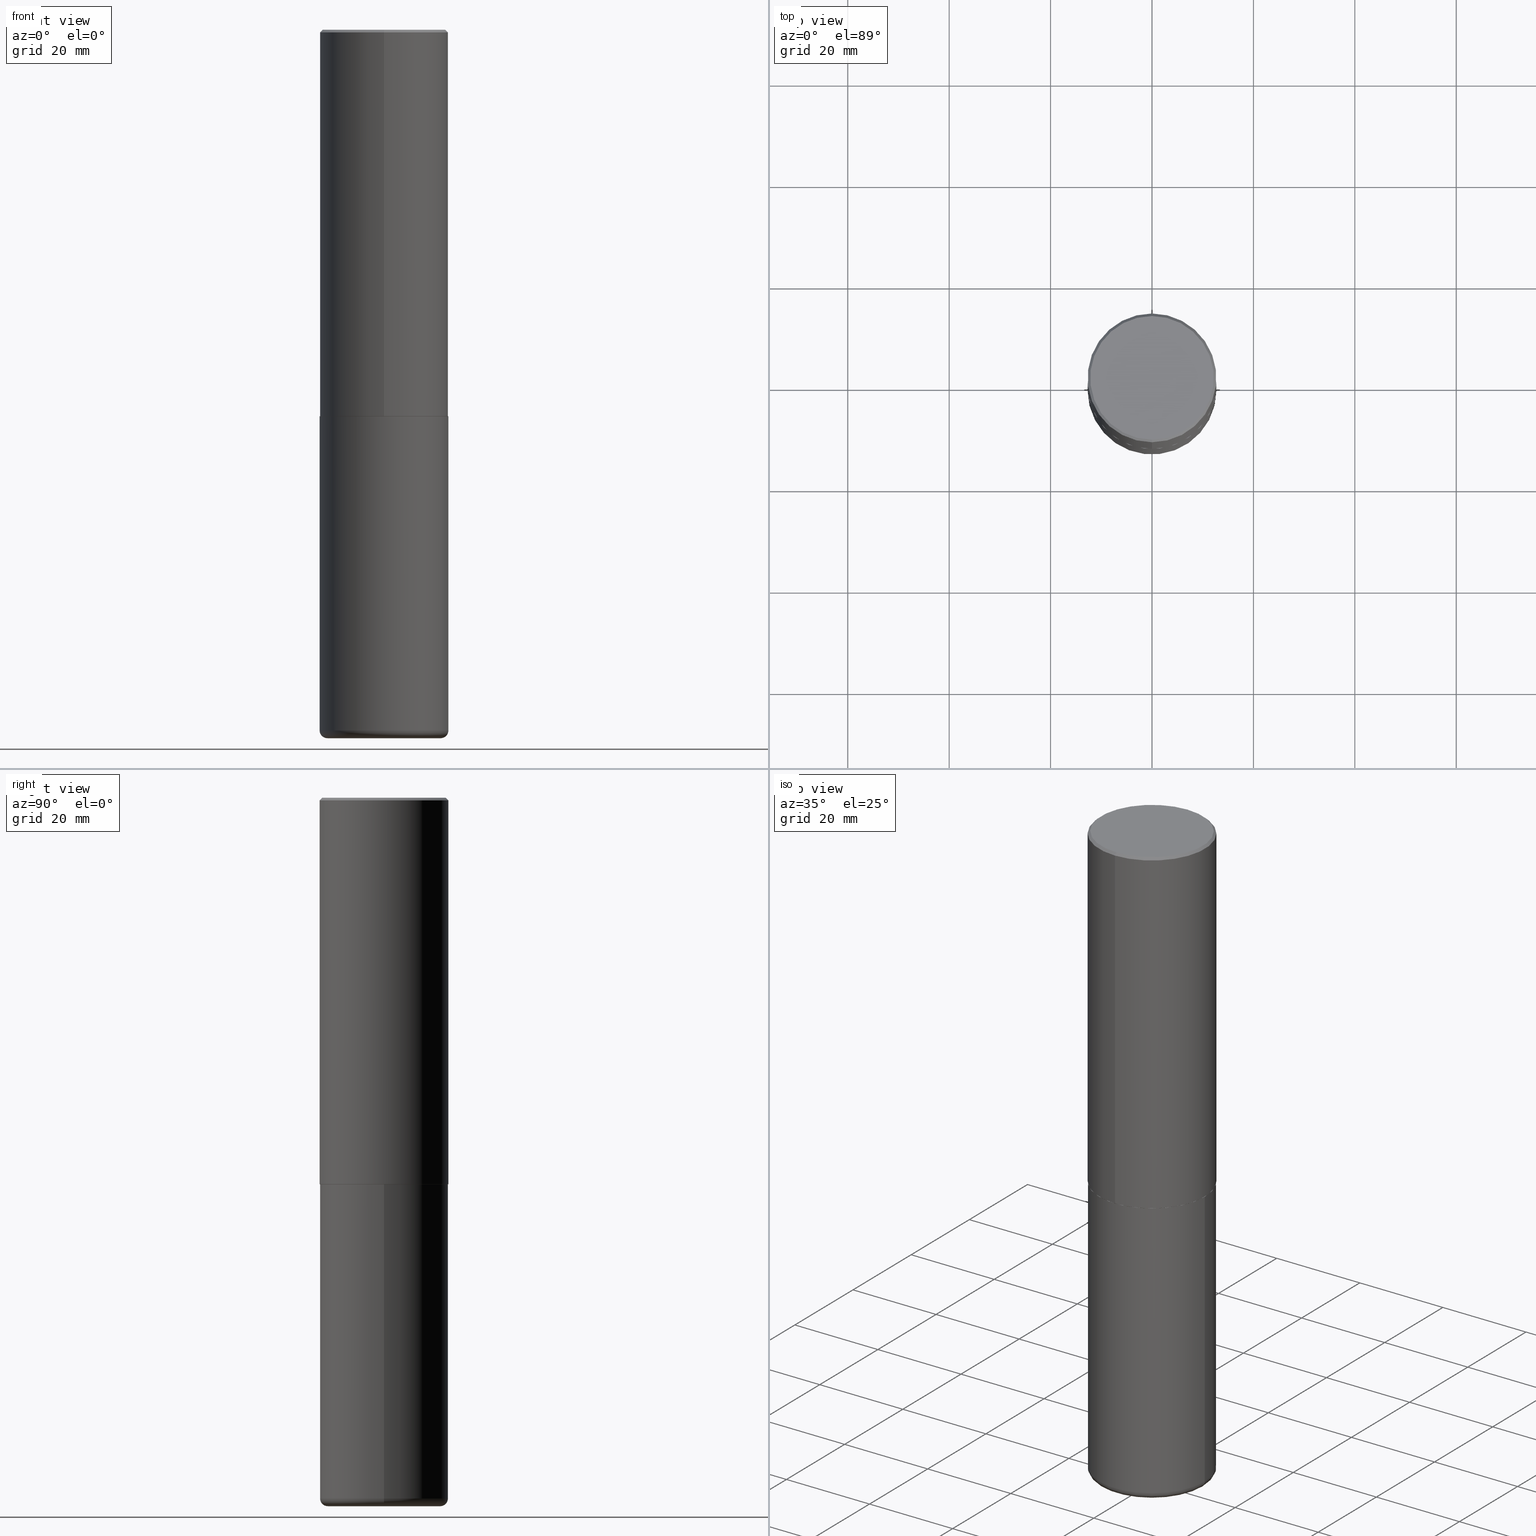
[diagram: canonical four-view strip — front | top / right | iso, engineering-drawing reading convention]
A machine part, canonical four-view strip (front | top / right | iso — engineering-drawing reading convention). The complete STEP part file that produces these views, byte-faithful:
ISO-10303-21;
HEADER;
FILE_DESCRIPTION (( 'STEP AP203' ),
    '1' );
FILE_NAME ('77470.STEP',
    '2024-05-02T19:46:16',
    ( '' ),
    ( '' ),
    'SwSTEP 2.0',
    'SolidWorks 2023',
    '' );
FILE_SCHEMA (( 'CONFIG_CONTROL_DESIGN' ));
ENDSEC;

DATA;
#1 = PERSON_AND_ORGANIZATION_ROLE ( 'design_supplier' ) ;
#2 = ORIENTED_EDGE ( 'NONE', *, *, #126, .T. ) ;
#3 = AXIS2_PLACEMENT_3D ( 'NONE', #138, #376, #83 ) ;
#4 = PERSON_AND_ORGANIZATION ( #367, #364 ) ;
#5 = FACE_OUTER_BOUND ( 'NONE', #248, .T. ) ;
#6 = PERSON_AND_ORGANIZATION_ROLE ( 'classification_officer' ) ;
#7 = DIRECTION ( 'NONE',  ( 2.446018302604025097E-29, -3.490694428695902798E-15, -1.000000000000000000 ) ) ;
#8 = APPROVAL_DATE_TIME ( #160, #267 ) ;
#9 = AXIS2_PLACEMENT_3D ( 'NONE', #246, #383, #89 ) ;
#10 = CARTESIAN_POINT ( 'NONE',  ( 0.5000000000000000000, -3.491481338843133355E-15, 2.438088387897967896E-29 ) ) ;
#11 = ADVANCED_FACE ( 'NONE', ( #5 ), #301, .T. ) ;
#12 = EDGE_CURVE ( 'NONE', #361, #276, #292, .T. ) ;
#13 = PLANE ( 'NONE',  #370 ) ;
#14 = ORIENTED_EDGE ( 'NONE', *, *, #61, .F. ) ;
#15 = APPROVAL ( #132, 'UNSPECIFIED' ) ;
#16 = DIRECTION ( 'NONE',  ( -2.446018302604025378E-29, 3.490694428695902798E-15, 1.000000000000000000 ) ) ;
#17 = FACE_OUTER_BOUND ( 'NONE', #209, .T. ) ;
#18 = CARTESIAN_POINT ( 'NONE',  ( 7.338054907812074731E-29, -1.047208328608770642E-14, -2.999999999999999556 ) ) ;
#19 = AXIS2_PLACEMENT_3D ( 'NONE', #219, #244, #319 ) ;
#20 = CIRCLE ( 'NONE', #122, 0.5000000000000003331 ) ;
#21 = EDGE_LOOP ( 'NONE', ( #140, #363, #290, #163 ) ) ;
#22 = DIRECTION ( 'NONE',  ( -6.982962677686265922E-15, -1.000000000000000000, 3.490694428695902798E-15 ) ) ;
#23 = CC_DESIGN_PERSON_AND_ORGANIZATION_ASSIGNMENT ( #189, #225, ( #294 ) ) ;
#24 = ORIENTED_EDGE ( 'NONE', *, *, #417, .F. ) ;
#25 = CARTESIAN_POINT ( 'NONE',  ( 0.000000000000000000, 0.000000000000000000, 0.000000000000000000 ) ) ;
#26 = PRODUCT_DEFINITION_FORMATION_WITH_SPECIFIED_SOURCE ( 'ANY', '', #44, .NOT_KNOWN. ) ;
#27 = MECHANICAL_CONTEXT ( 'NONE', #37, 'mechanical' ) ;
#28 = CARTESIAN_POINT ( 'NONE',  ( 3.421651712066271240E-15, 0.4800000000000000933, -1.782623854897220357E-15 ) ) ;
#29 = FACE_OUTER_BOUND ( 'NONE', #238, .T. ) ;
#30 = CONICAL_SURFACE ( 'NONE', #263, 0.5000000000000000000, 0.7853981633974463916 ) ;
#31 = ORIENTED_EDGE ( 'NONE', *, *, #351, .F. ) ;
#32 = COORDINATED_UNIVERSAL_TIME_OFFSET ( 5, 0, .BEHIND. ) ;
#33 = CC_DESIGN_DATE_AND_TIME_ASSIGNMENT ( #40, #297, ( #371 ) ) ;
#34 = DIRECTION ( 'NONE',  ( -6.982962677686265922E-15, -1.000000000000000000, 3.284787166730577015E-15 ) ) ;
#35 = DIRECTION ( 'NONE',  ( 1.000000000000000000, -6.982962677686270655E-15, 0.000000000000000000 ) ) ;
#36 = VERTEX_POINT ( 'NONE', #174 ) ;
#37 = APPLICATION_CONTEXT ( 'configuration controlled 3d designs of mechanical parts and assemblies' ) ;
#38 = CIRCLE ( 'NONE', #93, 0.5000000000000001110 ) ;
#39 = AXIS2_PLACEMENT_3D ( 'NONE', #18, #266, #230 ) ;
#40 = DATE_AND_TIME ( #103, #108 ) ;
#41 = SECURITY_CLASSIFICATION_LEVEL ( 'unclassified' ) ;
#42 = CARTESIAN_POINT ( 'NONE',  ( 7.335608889509473609E-29, -1.046859259165901344E-14, -2.999000000000000554 ) ) ;
#43 = DIRECTION ( 'NONE',  ( -6.982962677686265922E-15, -1.000000000000000000, 3.490694428695902798E-15 ) ) ;
#44 = PRODUCT ( '77470', '77470', '', ( #27 ) ) ;
#45 = CARTESIAN_POINT ( 'NONE',  ( 3.491481338843133355E-15, 0.4999999999999999445, -0.02000000000000185310 ) ) ;
#46 = ADVANCED_FACE ( 'NONE', ( #17 ), #142, .F. ) ;
#47 = ORIENTED_EDGE ( 'NONE', *, *, #327, .F. ) ;
#48 = DIRECTION ( 'NONE',  ( 1.000000000000000000, -6.982962677686269077E-15, 0.000000000000000000 ) ) ;
#49 = DIRECTION ( 'NONE',  ( -2.445468806185136597E-29, 3.491481338843145583E-15, 1.000000000000000000 ) ) ;
#50 = DIRECTION ( 'NONE',  ( 1.000000000000000000, -6.982962677686262766E-15, 4.883557194083111780E-29 ) ) ;
#51 = ADVANCED_FACE ( 'NONE', ( #318 ), #152, .T. ) ;
#52 = FACE_OUTER_BOUND ( 'NONE', #112, .T. ) ;
#53 = AXIS2_PLACEMENT_3D ( 'NONE', #172, #49, #82 ) ;
#54 = LOCAL_TIME ( 15, 46, 16.00000000000000000, #127 ) ;
#55 = ORIENTED_EDGE ( 'NONE', *, *, #59, .T. ) ;
#56 = DIRECTION ( 'NONE',  ( -4.851104656540954020E-15, -0.7071067811865485719, -0.7071067811865464625 ) ) ;
#57 = EDGE_LOOP ( 'NONE', ( #354, #377 ) ) ;
#58 = CARTESIAN_POINT ( 'NONE',  ( 2.619453942708643347E-45, -3.738203133764044518E-31, -1.070905291231867826E-16 ) ) ;
#59 = EDGE_CURVE ( 'NONE', #418, #147, #341, .T. ) ;
#60 = FACE_OUTER_BOUND ( 'NONE', #110, .T. ) ;
#61 = EDGE_CURVE ( 'NONE', #88, #81, #104, .T. ) ;
#62 =( CONVERSION_BASED_UNIT ( 'INCH', #85 ) LENGTH_UNIT ( ) NAMED_UNIT ( #254 ) );
#63 = PERSON_AND_ORGANIZATION ( #367, #364 ) ;
#64 = AXIS2_PLACEMENT_3D ( 'NONE', #324, #395, #34 ) ;
#65 = VECTOR ( 'NONE', #92, 39.37007874015748143 ) ;
#66 = DATE_AND_TIME ( #157, #316 ) ;
#67 = FACE_OUTER_BOUND ( 'NONE', #313, .T. ) ;
#68 = ORIENTED_EDGE ( 'NONE', *, *, #325, .T. ) ;
#69 = ORIENTED_EDGE ( 'NONE', *, *, #187, .T. ) ;
#70 = CYLINDRICAL_SURFACE ( 'NONE', #136, 0.5000000000000000000 ) ;
#71 = ORIENTED_EDGE ( 'NONE', *, *, #126, .F. ) ;
#72 = AXIS2_PLACEMENT_3D ( 'NONE', #113, #339, #334 ) ;
#73 = APPROVAL_ROLE ( '' ) ;
#74 = DIRECTION ( 'NONE',  ( 2.446018302604025378E-29, -3.490694428695902798E-15, -1.000000000000000000 ) ) ;
#75 = ADVANCED_FACE ( 'NONE', ( #190 ), #30, .T. ) ;
#76 = DIRECTION ( 'NONE',  ( -1.000000000000000000, 7.105427357600994759E-15, 0.000000000000000000 ) ) ;
#77 = DIRECTION ( 'NONE',  ( 4.937700262164537787E-15, 0.7071067811865436870, -0.7071067811865513475 ) ) ;
#78 = AXIS2_PLACEMENT_3D ( 'NONE', #296, #7, #141 ) ;
#79 = APPROVAL_PERSON_ORGANIZATION ( #63, #365, #295 ) ;
#80 = FACE_OUTER_BOUND ( 'NONE', #241, .T. ) ;
#81 = VERTEX_POINT ( 'NONE', #392 ) ;
#82 = DIRECTION ( 'NONE',  ( 1.000000000000000000, -6.982962677686266711E-15, 0.000000000000000000 ) ) ;
#83 = DIRECTION ( 'NONE',  ( -6.982962677686265922E-15, -1.000000000000000000, 3.490694428695902798E-15 ) ) ;
#84 = ORIENTED_EDGE ( 'NONE', *, *, #357, .T. ) ;
#85 = LENGTH_MEASURE_WITH_UNIT ( LENGTH_MEASURE( 0.02539999999999999897 ), #412 );
#86 = AXIS2_PLACEMENT_3D ( 'NONE', #42, #228, #298 ) ;
#87 = CC_DESIGN_APPROVAL ( #15, ( #294 ) ) ;
#88 = VERTEX_POINT ( 'NONE', #358 ) ;
#89 = DIRECTION ( 'NONE',  ( 1.000000000000000000, 0.000000000000000000, 0.000000000000000000 ) ) ;
#90 = CARTESIAN_POINT ( 'NONE',  ( -3.430248998885764992E-15, -0.5000000000000001110, -0.01999999999999835937 ) ) ;
#91 = EDGE_CURVE ( 'NONE', #81, #177, #321, .T. ) ;
#92 = DIRECTION ( 'NONE',  ( -2.446018302604025097E-29, 3.490694428695902798E-15, 1.000000000000000000 ) ) ;
#93 = AXIS2_PLACEMENT_3D ( 'NONE', #173, #270, #48 ) ;
#94 = CARTESIAN_POINT ( 'NONE',  ( 1.345007843401825128E-28, -1.920314736363730603E-14, -5.500000000000000888 ) ) ;
#95 = ORIENTED_EDGE ( 'NONE', *, *, #216, .T. ) ;
#96 = DATE_TIME_ROLE ( 'creation_date' ) ;
#97 = DIRECTION ( 'NONE',  ( 6.982962677686265922E-15, 1.000000000000000000, -3.491643216902136408E-15 ) ) ;
#98 = ORIENTED_EDGE ( 'NONE', *, *, #259, .T. ) ;
#99 = PERSON_AND_ORGANIZATION_ROLE ( 'creator' ) ;
#100 = CARTESIAN_POINT ( 'NONE',  ( 7.336406418555408669E-29, -1.047444401652943478E-14, -2.999999999999999556 ) ) ;
#101 = EDGE_CURVE ( 'NONE', #276, #361, #256, .T. ) ;
#102 = ORIENTED_EDGE ( 'NONE', *, *, #417, .T. ) ;
#103 = CALENDAR_DATE ( 2024, 2, 5 ) ;
#104 = LINE ( 'NONE', #258, #210 ) ;
#105 = CARTESIAN_POINT ( 'NONE',  ( 4.892036605208077240E-31, -6.981388857391842821E-17, -0.02000000000000010797 ) ) ;
#106 = CARTESIAN_POINT ( 'NONE',  ( -0.4400000000000000022, -1.586727044596227254E-14, -5.439999999999999503 ) ) ;
#107 = DIRECTION ( 'NONE',  ( -2.445468806185136597E-29, 3.491481338843145583E-15, 1.000000000000000000 ) ) ;
#108 = LOCAL_TIME ( 15, 46, 16.00000000000000000, #227 ) ;
#109 = DIRECTION ( 'NONE',  ( -6.982962677686265922E-15, -1.000000000000000000, 3.491643216902136408E-15 ) ) ;
#110 = EDGE_LOOP ( 'NONE', ( #328, #124, #408, #205 ) ) ;
#111 = FACE_OUTER_BOUND ( 'NONE', #345, .T. ) ;
#112 = EDGE_LOOP ( 'NONE', ( #14, #337, #386, #197 ) ) ;
#113 = CARTESIAN_POINT ( 'NONE',  ( 1.345007843401825128E-28, -1.920314736363730603E-14, -5.500000000000000888 ) ) ;
#114 = VERTEX_POINT ( 'NONE', #161 ) ;
#115 = ADVANCED_BREP_SHAPE_REPRESENTATION ( '77470', ( #280, #277, #9 ), #151 ) ;
#116 = AXIS2_PLACEMENT_3D ( 'NONE', #400, #179, #312 ) ;
#117 = ADVANCED_FACE ( 'NONE', ( #67 ), #70, .T. ) ;
#118 = CARTESIAN_POINT ( 'NONE',  ( -3.491481338843133750E-15, -0.5000000000000001110, 1.745347214347951794E-15 ) ) ;
#119 = CARTESIAN_POINT ( 'NONE',  ( 3.911882143583421782E-29, -3.286238733195861778E-14, -5.500000000000000000 ) ) ;
#120 = DIRECTION ( 'NONE',  ( -1.000000000000000000, 6.982962677686265922E-15, -4.876176775795935793E-29 ) ) ;
#121 = EDGE_CURVE ( 'NONE', #222, #88, #349, .T. ) ;
#122 = AXIS2_PLACEMENT_3D ( 'NONE', #300, #237, #235 ) ;
#123 = DIRECTION ( 'NONE',  ( 1.000000000000000000, -6.982962677686266711E-15, 4.876176775795935793E-29 ) ) ;
#124 = ORIENTED_EDGE ( 'NONE', *, *, #61, .T. ) ;
#125 = APPROVAL_STATUS ( 'not_yet_approved' ) ;
#126 = EDGE_CURVE ( 'NONE', #36, #361, #130, .T. ) ;
#127 = COORDINATED_UNIVERSAL_TIME_OFFSET ( 5, 0, .BEHIND. ) ;
#128 = AXIS2_PLACEMENT_3D ( 'NONE', #100, #134, #133 ) ;
#129 = CC_DESIGN_APPROVAL ( #365, ( #26 ) ) ;
#130 = LINE ( 'NONE', #366, #302 ) ;
#131 = ORIENTED_EDGE ( 'NONE', *, *, #91, .T. ) ;
#132 = APPROVAL_STATUS ( 'not_yet_approved' ) ;
#133 = DIRECTION ( 'NONE',  ( 1.000000000000000000, -6.982962677686266711E-15, 0.000000000000000000 ) ) ;
#134 = DIRECTION ( 'NONE',  ( -2.445468806185136597E-29, 3.491481338843145583E-15, 1.000000000000000000 ) ) ;
#135 = CC_DESIGN_PERSON_AND_ORGANIZATION_ASSIGNMENT ( #289, #99, ( #26 ) ) ;
#136 = AXIS2_PLACEMENT_3D ( 'NONE', #261, #262, #223 ) ;
#137 = CIRCLE ( 'NONE', #3, 0.4800000000000000933 ) ;
#138 = CARTESIAN_POINT ( 'NONE',  ( 2.619453942708643347E-45, -3.738203133764044518E-31, -1.070905291231867826E-16 ) ) ;
#139 = FACE_OUTER_BOUND ( 'NONE', #269, .T. ) ;
#140 = ORIENTED_EDGE ( 'NONE', *, *, #357, .F. ) ;
#141 = DIRECTION ( 'NONE',  ( 6.982962677686265922E-15, 1.000000000000000000, -3.490694428695902798E-15 ) ) ;
#142 = PLANE ( 'NONE',  #19 ) ;
#143 = AXIS2_PLACEMENT_3D ( 'NONE', #385, #320, #154 ) ;
#144 = DIRECTION ( 'NONE',  ( -2.445468806185136597E-29, 3.491481338843145583E-15, 1.000000000000000000 ) ) ;
#145 = ORIENTED_EDGE ( 'NONE', *, *, #201, .F. ) ;
#146 = LINE ( 'NONE', #45, #257 ) ;
#147 = VERTEX_POINT ( 'NONE', #159 ) ;
#148 = ADVANCED_FACE ( 'NONE', ( #194 ), #164, .F. ) ;
#149 = CARTESIAN_POINT ( 'NONE',  ( -3.484498376165373188E-15, -0.4990000000000104352, -2.999999999999998224 ) ) ;
#150 = CARTESIAN_POINT ( 'NONE',  ( -0.5000000000000000000, -1.118133757111757295E-14, -2.999999999999999556 ) ) ;
#151 =( GEOMETRIC_REPRESENTATION_CONTEXT ( 3 ) GLOBAL_UNCERTAINTY_ASSIGNED_CONTEXT ( ( #398 ) ) GLOBAL_UNIT_ASSIGNED_CONTEXT ( ( #62, #348, #211 ) ) REPRESENTATION_CONTEXT ( 'NONE', 'WORKASPACE' ) );
#152 = PLANE ( 'NONE',  #393 ) ;
#153 = DIRECTION ( 'NONE',  ( 6.982962677686265922E-15, 1.000000000000000000, -3.491643216902136408E-15 ) ) ;
#154 = DIRECTION ( 'NONE',  ( -6.982962677686265922E-15, -1.000000000000000000, 3.491643216902136408E-15 ) ) ;
#155 = AXIS2_PLACEMENT_3D ( 'NONE', #94, #218, #35 ) ;
#156 = VECTOR ( 'NONE', #314, 39.37007874015748143 ) ;
#157 = CALENDAR_DATE ( 2024, 2, 5 ) ;
#158 = DIRECTION ( 'NONE',  ( -2.445468806185136877E-29, 3.491481338843145188E-15, 1.000000000000000000 ) ) ;
#159 = CARTESIAN_POINT ( 'NONE',  ( -0.4400000000000000022, -1.575885206539953724E-14, -5.500000000000000888 ) ) ;
#160 = DATE_AND_TIME ( #186, #403 ) ;
#161 = CARTESIAN_POINT ( 'NONE',  ( 3.491481338843133355E-15, 0.4999999999999999445, -0.02000000000000185310 ) ) ;
#162 = APPROVAL_PERSON_ORGANIZATION ( #4, #267, #73 ) ;
#163 = ORIENTED_EDGE ( 'NONE', *, *, #388, .T. ) ;
#164 = PLANE ( 'NONE',  #78 ) ;
#165 = PERSON_AND_ORGANIZATION ( #367, #364 ) ;
#166 = ADVANCED_FACE ( 'NONE', ( #80 ), #13, .F. ) ;
#167 = DIRECTION ( 'NONE',  ( 5.024295867790807626E-15, 0.7071067811869363728, 0.7071067811861586616 ) ) ;
#168 = LINE ( 'NONE', #10, #304 ) ;
#169 = AXIS2_PLACEMENT_3D ( 'NONE', #278, #305, #407 ) ;
#170 = CONICAL_SURFACE ( 'NONE', #355, 0.5000000000000000000, 0.7853981633974463916 ) ;
#171 = CARTESIAN_POINT ( 'NONE',  ( -3.361644018908050055E-15, -0.4800000000000000933, 1.568442796650846842E-15 ) ) ;
#172 = CARTESIAN_POINT ( 'NONE',  ( 7.336406418555408669E-29, -1.047444401652943478E-14, -2.999999999999999556 ) ) ;
#173 = CARTESIAN_POINT ( 'NONE',  ( 1.330335030564714425E-28, -1.899365848330671298E-14, -5.439999999999999503 ) ) ;
#174 = CARTESIAN_POINT ( 'NONE',  ( -0.5000000000000002220, -1.544094480450621205E-14, -5.439999999999999503 ) ) ;
#175 = CC_DESIGN_PERSON_AND_ORGANIZATION_ASSIGNMENT ( #382, #214, ( #44 ) ) ;
#176 = CARTESIAN_POINT ( 'NONE',  ( 0.5000000000000002220, -2.248513982214985265E-14, -5.439999999999999503 ) ) ;
#177 = VERTEX_POINT ( 'NONE', #206 ) ;
#178 = VECTOR ( 'NONE', #56, 39.37007874015748143 ) ;
#179 = DIRECTION ( 'NONE',  ( -2.446018302604025378E-29, 3.490694428695902798E-15, 1.000000000000000000 ) ) ;
#180 = EDGE_LOOP ( 'NONE', ( #98, #310 ) ) ;
#181 = LINE ( 'NONE', #149, #251 ) ;
#182 = ADVANCED_FACE ( 'NONE', ( #111 ), #396, .T. ) ;
#183 = ORIENTED_EDGE ( 'NONE', *, *, #381, .T. ) ;
#184 = DIRECTION ( 'NONE',  ( 2.446018302604025378E-29, -3.490694428695902798E-15, -1.000000000000000000 ) ) ;
#185 = TOROIDAL_SURFACE ( 'NONE', #410, 0.4400000000000000022, 0.06000000000000051820 ) ;
#186 = CALENDAR_DATE ( 2024, 2, 5 ) ;
#187 = EDGE_CURVE ( 'NONE', #255, #36, #38, .T. ) ;
#188 = ORIENTED_EDGE ( 'NONE', *, *, #239, .T. ) ;
#189 = PERSON_AND_ORGANIZATION ( #367, #364 ) ;
#190 = FACE_OUTER_BOUND ( 'NONE', #21, .T. ) ;
#191 = PRODUCT_RELATED_PRODUCT_CATEGORY ( 'detail', '', ( #44 ) ) ;
#192 = ORIENTED_EDGE ( 'NONE', *, *, #216, .F. ) ;
#193 = DATE_AND_TIME ( #329, #54 ) ;
#194 = FACE_OUTER_BOUND ( 'NONE', #180, .T. ) ;
#195 = CLOSED_SHELL ( 'NONE', ( #374, #343, #399, #75, #182, #288, #46, #148 ) ) ;
#196 = CIRCLE ( 'NONE', #39, 0.4989999999999999991 ) ;
#197 = ORIENTED_EDGE ( 'NONE', *, *, #91, .F. ) ;
#198 = COORDINATED_UNIVERSAL_TIME_OFFSET ( 5, 0, .BEHIND. ) ;
#199 = CARTESIAN_POINT ( 'NONE',  ( 0.000000000000000000, 0.000000000000000000, 0.000000000000000000 ) ) ;
#200 = CARTESIAN_POINT ( 'NONE',  ( 0.000000000000000000, 0.000000000000000000, 0.000000000000000000 ) ) ;
#201 = EDGE_CURVE ( 'NONE', #418, #255, #380, .T. ) ;
#202 = CIRCLE ( 'NONE', #169, 0.5000000000000001110 ) ;
#203 = DIRECTION ( 'NONE',  ( 2.438088387897960049E-29, -3.491481338843145188E-15, -1.000000000000000000 ) ) ;
#204 = EDGE_CURVE ( 'NONE', #271, #114, #311, .T. ) ;
#205 = ORIENTED_EDGE ( 'NONE', *, *, #414, .F. ) ;
#206 = CARTESIAN_POINT ( 'NONE',  ( -3.491481338843061963E-15, -0.5000000000000107692, -2.998999999999998778 ) ) ;
#207 = EDGE_LOOP ( 'NONE', ( #31, #84, #359, #372 ) ) ;
#208 = CARTESIAN_POINT ( 'NONE',  ( -3.430248998885764992E-15, -0.5000000000000001110, -0.01999999999999835937 ) ) ;
#209 = EDGE_LOOP ( 'NONE', ( #379, #212 ) ) ;
#210 = VECTOR ( 'NONE', #167, 39.37007874015748143 ) ;
#211 =( NAMED_UNIT ( * ) SI_UNIT ( $, .STERADIAN. ) SOLID_ANGLE_UNIT ( ) );
#212 = ORIENTED_EDGE ( 'NONE', *, *, #265, .F. ) ;
#213 = DIRECTION ( 'NONE',  ( -4.937700262167245946E-15, -0.7071067811869314879, 0.7071067811861635466 ) ) ;
#214 = PERSON_AND_ORGANIZATION_ROLE ( 'design_owner' ) ;
#215 = CC_DESIGN_APPROVAL ( #267, ( #371 ) ) ;
#216 = EDGE_CURVE ( 'NONE', #255, #276, #168, .T. ) ;
#217 = APPLICATION_PROTOCOL_DEFINITION ( 'international standard', 'config_control_design', 1994, #37 ) ;
#218 = DIRECTION ( 'NONE',  ( -2.445468806185136597E-29, 3.491481338843145583E-15, 1.000000000000000000 ) ) ;
#219 = CARTESIAN_POINT ( 'NONE',  ( 7.338054907812074731E-29, -1.047208328608770642E-14, -2.999999999999999556 ) ) ;
#220 = ORIENTED_EDGE ( 'NONE', *, *, #327, .T. ) ;
#221 = CARTESIAN_POINT ( 'NONE',  ( 4.892036605208077240E-31, -6.981388857391842821E-17, -0.02000000000000010797 ) ) ;
#222 = VERTEX_POINT ( 'NONE', #274 ) ;
#223 = DIRECTION ( 'NONE',  ( 1.000000000000000000, -6.982962677686266711E-15, 4.876176775795935793E-29 ) ) ;
#224 = ORIENTED_EDGE ( 'NONE', *, *, #12, .T. ) ;
#225 = PERSON_AND_ORGANIZATION_ROLE ( 'creator' ) ;
#226 = ORIENTED_EDGE ( 'NONE', *, *, #204, .F. ) ;
#227 = COORDINATED_UNIVERSAL_TIME_OFFSET ( 5, 0, .BEHIND. ) ;
#228 = DIRECTION ( 'NONE',  ( -2.446018302604025378E-29, 3.490694428695902798E-15, 1.000000000000000000 ) ) ;
#229 = EDGE_CURVE ( 'NONE', #147, #418, #287, .T. ) ;
#230 = DIRECTION ( 'NONE',  ( -6.982962677686265922E-15, -1.000000000000000000, 3.284787166730577015E-15 ) ) ;
#231 = FACE_OUTER_BOUND ( 'NONE', #326, .T. ) ;
#232 = DIRECTION ( 'NONE',  ( 1.000000000000000000, -6.982962677686262766E-15, 4.883557194083111780E-29 ) ) ;
#233 = CLOSED_SHELL ( 'NONE', ( #117, #11, #166, #360, #247, #51 ) ) ;
#234 = AXIS2_PLACEMENT_3D ( 'NONE', #105, #16, #109 ) ;
#235 = DIRECTION ( 'NONE',  ( -6.982962677686265922E-15, -1.000000000000000000, 3.278217592397113496E-15 ) ) ;
#236 = ORIENTED_EDGE ( 'NONE', *, *, #101, .T. ) ;
#237 = DIRECTION ( 'NONE',  ( -2.446018302604025378E-29, 3.490694428695902798E-15, 1.000000000000000000 ) ) ;
#238 = EDGE_LOOP ( 'NONE', ( #71, #68, #95, #308 ) ) ;
#239 = EDGE_CURVE ( 'NONE', #177, #81, #20, .T. ) ;
#240 = DIRECTION ( 'NONE',  ( 7.105427357601001859E-15, 1.000000000000000000, -3.491481338843145583E-15 ) ) ;
#241 = EDGE_LOOP ( 'NONE', ( #236, #224 ) ) ;
#242 = CIRCLE ( 'NONE', #335, 0.06000000000000051820 ) ;
#243 = APPLICATION_CONTEXT ( 'configuration controlled 3d designs of mechanical parts and assemblies' ) ;
#244 = DIRECTION ( 'NONE',  ( -2.446018302604025097E-29, 3.490694428695902798E-15, 1.000000000000000000 ) ) ;
#245 = LINE ( 'NONE', #416, #156 ) ;
#246 = CARTESIAN_POINT ( 'NONE',  ( 0.000000000000000000, 0.000000000000000000, 0.000000000000000000 ) ) ;
#247 = ADVANCED_FACE ( 'NONE', ( #139 ), #185, .T. ) ;
#248 = EDGE_LOOP ( 'NONE', ( #55, #220, #331, #145 ) ) ;
#249 = AXIS2_PLACEMENT_3D ( 'NONE', #390, #107, #232 ) ;
#250 = DIRECTION ( 'NONE',  ( -2.446018302604025378E-29, 3.490694428695902798E-15, 1.000000000000000000 ) ) ;
#251 = VECTOR ( 'NONE', #213, 39.37007874015748143 ) ;
#252 = SHAPE_DEFINITION_REPRESENTATION ( #397, #115 ) ;
#253 = COORDINATED_UNIVERSAL_TIME_OFFSET ( 5, 0, .BEHIND. ) ;
#254 = DIMENSIONAL_EXPONENTS ( 1.000000000000000000, 0.000000000000000000, 0.000000000000000000, 0.000000000000000000, 0.000000000000000000, 0.000000000000000000, 0.000000000000000000 ) ;
#255 = VERTEX_POINT ( 'NONE', #176 ) ;
#256 = CIRCLE ( 'NONE', #128, 0.5000000000000000000 ) ;
#257 = VECTOR ( 'NONE', #77, 39.37007874015748143 ) ;
#258 = CARTESIAN_POINT ( 'NONE',  ( 3.545608251442972496E-15, 0.4989999999999895630, -3.000000000000001332 ) ) ;
#259 = EDGE_CURVE ( 'NONE', #404, #279, #137, .T. ) ;
#260 = APPROVAL_ROLE ( '' ) ;
#261 = CARTESIAN_POINT ( 'NONE',  ( 0.000000000000000000, 0.000000000000000000, 0.000000000000000000 ) ) ;
#262 = DIRECTION ( 'NONE',  ( -2.445468806185136597E-29, 3.491481338843145583E-15, 1.000000000000000000 ) ) ;
#263 = AXIS2_PLACEMENT_3D ( 'NONE', #221, #74, #97 ) ;
#264 = APPROVAL_PERSON_ORGANIZATION ( #389, #15, #260 ) ;
#265 = EDGE_CURVE ( 'NONE', #88, #222, #196, .T. ) ;
#266 = DIRECTION ( 'NONE',  ( -2.446018302604025378E-29, 3.490694428695902798E-15, 1.000000000000000000 ) ) ;
#267 = APPROVAL ( #125, 'UNSPECIFIED' ) ;
#268 = DIRECTION ( 'NONE',  ( 1.000000000000000000, -6.982962677686273021E-15, 0.000000000000000000 ) ) ;
#269 = EDGE_LOOP ( 'NONE', ( #47, #375, #340, #352 ) ) ;
#270 = DIRECTION ( 'NONE',  ( -2.445468806185136597E-29, 3.491481338843145583E-15, 1.000000000000000000 ) ) ;
#271 = VERTEX_POINT ( 'NONE', #208 ) ;
#272 = AXIS2_PLACEMENT_3D ( 'NONE', #200, #336, #22 ) ;
#273 = CC_DESIGN_SECURITY_CLASSIFICATION ( #371, ( #26 ) ) ;
#274 = CARTESIAN_POINT ( 'NONE',  ( -3.484498376165373188E-15, -0.4990000000000104352, -2.999999999999998224 ) ) ;
#275 = CC_DESIGN_DATE_AND_TIME_ASSIGNMENT ( #362, #96, ( #294 ) ) ;
#276 = VERTEX_POINT ( 'NONE', #368 ) ;
#277 = MANIFOLD_SOLID_BREP ( 'Body-Move/Copy2[2]', #195 ) ;
#278 = CARTESIAN_POINT ( 'NONE',  ( 1.330335030564714425E-28, -1.899365848330671298E-14, -5.439999999999999503 ) ) ;
#279 = VERTEX_POINT ( 'NONE', #171 ) ;
#280 = MANIFOLD_SOLID_BREP ( 'Body-Move/Copy2[1]', #233 ) ;
#281 = AXIS2_PLACEMENT_3D ( 'NONE', #378, #250, #283 ) ;
#282 = LINE ( 'NONE', #118, #65 ) ;
#283 = DIRECTION ( 'NONE',  ( -6.982962677686265922E-15, -1.000000000000000000, 3.284787166730577015E-15 ) ) ;
#284 = DESIGN_CONTEXT ( 'detailed design', #243, 'design' ) ;
#285 = CARTESIAN_POINT ( 'NONE',  ( 0.4400000000000000022, -2.227565094181926275E-14, -5.500000000000000888 ) ) ;
#286 = CARTESIAN_POINT ( 'NONE',  ( 4.892036605208077240E-31, -6.981388857391842821E-17, -0.02000000000000010797 ) ) ;
#287 = CIRCLE ( 'NONE', #72, 0.4400000000000000022 ) ;
#288 = ADVANCED_FACE ( 'NONE', ( #52 ), #342, .T. ) ;
#289 = PERSON_AND_ORGANIZATION ( #367, #364 ) ;
#290 = ORIENTED_EDGE ( 'NONE', *, *, #299, .T. ) ;
#291 = APPROVAL_DATE_TIME ( #193, #15 ) ;
#292 = CIRCLE ( 'NONE', #53, 0.5000000000000000000 ) ;
#293 = AXIS2_PLACEMENT_3D ( 'NONE', #199, #333, #43 ) ;
#294 = PRODUCT_DEFINITION ( 'UNKNOWN', '', #26, #284 ) ;
#295 = APPROVAL_ROLE ( '' ) ;
#296 = CARTESIAN_POINT ( 'NONE',  ( 3.351822085289408337E-15, 0.4800000000000000933, -1.729078590335627126E-15 ) ) ;
#297 = DATE_TIME_ROLE ( 'classification_date' ) ;
#298 = DIRECTION ( 'NONE',  ( -6.982962677686265922E-15, -1.000000000000000000, 3.278217592397113496E-15 ) ) ;
#299 = EDGE_CURVE ( 'NONE', #404, #114, #146, .T. ) ;
#300 = CARTESIAN_POINT ( 'NONE',  ( 7.335608889509473609E-29, -1.046859259165901344E-14, -2.999000000000000554 ) ) ;
#301 = TOROIDAL_SURFACE ( 'NONE', #249, 0.4400000000000000022, 0.06000000000000051820 ) ;
#302 = VECTOR ( 'NONE', #158, 39.37007874015748143 ) ;
#303 = CC_DESIGN_PERSON_AND_ORGANIZATION_ASSIGNMENT ( #332, #1, ( #26 ) ) ;
#304 = VECTOR ( 'NONE', #402, 39.37007874015748143 ) ;
#305 = DIRECTION ( 'NONE',  ( -2.445468806185136597E-29, 3.491481338843145583E-15, 1.000000000000000000 ) ) ;
#306 = ORIENTED_EDGE ( 'NONE', *, *, #101, .F. ) ;
#307 = DIRECTION ( 'NONE',  ( -6.982962677686266711E-15, -1.000000000000000000, 3.491481338843145583E-15 ) ) ;
#308 = ORIENTED_EDGE ( 'NONE', *, *, #12, .F. ) ;
#309 = CARTESIAN_POINT ( 'NONE',  ( 7.336406418555408669E-29, -1.047444401652943478E-14, -2.999999999999999556 ) ) ;
#310 = ORIENTED_EDGE ( 'NONE', *, *, #351, .T. ) ;
#311 = CIRCLE ( 'NONE', #234, 0.5000000000000000000 ) ;
#312 = DIRECTION ( 'NONE',  ( -6.982962677686265922E-15, -1.000000000000000000, 3.284787166730577015E-15 ) ) ;
#313 = EDGE_LOOP ( 'NONE', ( #69, #2, #306, #192 ) ) ;
#314 = DIRECTION ( 'NONE',  ( -2.446018302604025097E-29, 3.490694428695902798E-15, 1.000000000000000000 ) ) ;
#315 = DIRECTION ( 'NONE',  ( -6.982962677686265922E-15, -1.000000000000000000, 3.490694428695902798E-15 ) ) ;
#316 = LOCAL_TIME ( 15, 46, 16.00000000000000000, #198 ) ;
#317 = LINE ( 'NONE', #90, #178 ) ;
#318 = FACE_OUTER_BOUND ( 'NONE', #57, .T. ) ;
#319 = DIRECTION ( 'NONE',  ( -6.982962677686265922E-15, -1.000000000000000000, 3.490694428695902798E-15 ) ) ;
#320 = DIRECTION ( 'NONE',  ( -2.446018302604025378E-29, 3.490694428695902798E-15, 1.000000000000000000 ) ) ;
#321 = CIRCLE ( 'NONE', #86, 0.5000000000000003331 ) ;
#322 = CALENDAR_DATE ( 2024, 2, 5 ) ;
#323 = AXIS2_PLACEMENT_3D ( 'NONE', #25, #409, #123 ) ;
#324 = CARTESIAN_POINT ( 'NONE',  ( 7.338054907812074731E-29, -1.047208328608770642E-14, -2.999999999999999556 ) ) ;
#325 = EDGE_CURVE ( 'NONE', #36, #255, #202, .T. ) ;
#326 = EDGE_LOOP ( 'NONE', ( #188, #102, #226, #401 ) ) ;
#327 = EDGE_CURVE ( 'NONE', #147, #36, #242, .T. ) ;
#328 = ORIENTED_EDGE ( 'NONE', *, *, #121, .T. ) ;
#329 = CALENDAR_DATE ( 2024, 2, 5 ) ;
#330 = CONICAL_SURFACE ( 'NONE', #281, 0.4989999999999999991, 0.7853981633979947308 ) ;
#331 = ORIENTED_EDGE ( 'NONE', *, *, #187, .F. ) ;
#332 = PERSON_AND_ORGANIZATION ( #367, #364 ) ;
#333 = DIRECTION ( 'NONE',  ( -2.446018302604025378E-29, 3.490694428695902798E-15, 1.000000000000000000 ) ) ;
#334 = DIRECTION ( 'NONE',  ( 1.000000000000000000, -6.982962677686270655E-15, 0.000000000000000000 ) ) ;
#335 = AXIS2_PLACEMENT_3D ( 'NONE', #106, #240, #76 ) ;
#336 = DIRECTION ( 'NONE',  ( -2.446018302604025378E-29, 3.490694428695902798E-15, 1.000000000000000000 ) ) ;
#337 = ORIENTED_EDGE ( 'NONE', *, *, #265, .T. ) ;
#338 = CARTESIAN_POINT ( 'NONE',  ( 1.330335030564714425E-28, -1.899365848330671298E-14, -5.439999999999999503 ) ) ;
#339 = DIRECTION ( 'NONE',  ( -2.445468806185136597E-29, 3.491481338843145583E-15, 1.000000000000000000 ) ) ;
#340 = ORIENTED_EDGE ( 'NONE', *, *, #201, .T. ) ;
#341 = CIRCLE ( 'NONE', #155, 0.4400000000000000022 ) ;
#342 = CONICAL_SURFACE ( 'NONE', #116, 0.4989999999999999991, 0.7853981633979947308 ) ;
#343 = ADVANCED_FACE ( 'NONE', ( #231 ), #369, .T. ) ;
#344 = DIRECTION ( 'NONE',  ( -2.446018302604025378E-29, 3.490694428695902798E-15, 1.000000000000000000 ) ) ;
#345 = EDGE_LOOP ( 'NONE', ( #24, #131, #183, #406 ) ) ;
#346 = APPLICATION_PROTOCOL_DEFINITION ( 'international standard', 'config_control_design', 1994, #243 ) ;
#347 = CC_DESIGN_PERSON_AND_ORGANIZATION_ASSIGNMENT ( #165, #6, ( #371 ) ) ;
#348 =( NAMED_UNIT ( * ) PLANE_ANGLE_UNIT ( ) SI_UNIT ( $, .RADIAN. ) );
#349 = CIRCLE ( 'NONE', #64, 0.4989999999999999991 ) ;
#350 = CIRCLE ( 'NONE', #143, 0.5000000000000000000 ) ;
#351 = EDGE_CURVE ( 'NONE', #279, #404, #394, .T. ) ;
#352 = ORIENTED_EDGE ( 'NONE', *, *, #325, .F. ) ;
#353 = APPROVAL_STATUS ( 'not_yet_approved' ) ;
#354 = ORIENTED_EDGE ( 'NONE', *, *, #59, .F. ) ;
#355 = AXIS2_PLACEMENT_3D ( 'NONE', #286, #184, #153 ) ;
#356 = AXIS2_PLACEMENT_3D ( 'NONE', #58, #344, #315 ) ;
#357 = EDGE_CURVE ( 'NONE', #279, #271, #317, .T. ) ;
#358 = CARTESIAN_POINT ( 'NONE',  ( 3.549160965121774184E-15, 0.4989999999999895630, -3.000000000000001332 ) ) ;
#359 = ORIENTED_EDGE ( 'NONE', *, *, #204, .T. ) ;
#360 = ADVANCED_FACE ( 'NONE', ( #29 ), #411, .T. ) ;
#361 = VERTEX_POINT ( 'NONE', #150 ) ;
#362 = DATE_AND_TIME ( #322, #387 ) ;
#363 = ORIENTED_EDGE ( 'NONE', *, *, #259, .F. ) ;
#364 = ORGANIZATION ( 'UNSPECIFIED', 'UNSPECIFIED', '' ) ;
#365 = APPROVAL ( #353, 'UNSPECIFIED' ) ;
#366 = CARTESIAN_POINT ( 'NONE',  ( -0.5000000000000000000, 3.552713678800500929E-15, -2.459467545127452891E-29 ) ) ;
#367 = PERSON ( 'UNSPECIFIED', 'UNSPECIFIED', 'UNSPECIFIED', ('UNSPECIFIED'), ('UNSPECIFIED'), ('UNSPECIFIED') ) ;
#368 = CARTESIAN_POINT ( 'NONE',  ( 0.5000000000000000000, -1.396592535537256813E-14, -2.999999999999999556 ) ) ;
#369 = CYLINDRICAL_SURFACE ( 'NONE', #293, 0.5000000000000001110 ) ;
#370 = AXIS2_PLACEMENT_3D ( 'NONE', #309, #203, #373 ) ;
#371 = SECURITY_CLASSIFICATION ( '', '', #41 ) ;
#372 = ORIENTED_EDGE ( 'NONE', *, *, #299, .F. ) ;
#373 = DIRECTION ( 'NONE',  ( -1.000000000000000000, 6.982962677686265922E-15, -4.876176775795935793E-29 ) ) ;
#374 = ADVANCED_FACE ( 'NONE', ( #60 ), #330, .T. ) ;
#375 = ORIENTED_EDGE ( 'NONE', *, *, #229, .T. ) ;
#376 = DIRECTION ( 'NONE',  ( -2.446018302604025378E-29, 3.490694428695902798E-15, 1.000000000000000000 ) ) ;
#377 = ORIENTED_EDGE ( 'NONE', *, *, #229, .F. ) ;
#378 = CARTESIAN_POINT ( 'NONE',  ( 7.338054907812074731E-29, -1.047208328608770642E-14, -2.999999999999999556 ) ) ;
#379 = ORIENTED_EDGE ( 'NONE', *, *, #121, .F. ) ;
#380 = CIRCLE ( 'NONE', #384, 0.06000000000000051820 ) ;
#381 = EDGE_CURVE ( 'NONE', #177, #271, #282, .T. ) ;
#382 = PERSON_AND_ORGANIZATION ( #367, #364 ) ;
#383 = DIRECTION ( 'NONE',  ( 0.000000000000000000, 0.000000000000000000, 1.000000000000000000 ) ) ;
#384 = AXIS2_PLACEMENT_3D ( 'NONE', #405, #307, #268 ) ;
#385 = CARTESIAN_POINT ( 'NONE',  ( 4.892036605208077240E-31, -6.981388857391842821E-17, -0.02000000000000010797 ) ) ;
#386 = ORIENTED_EDGE ( 'NONE', *, *, #414, .T. ) ;
#387 = LOCAL_TIME ( 15, 46, 16.00000000000000000, #32 ) ;
#388 = EDGE_CURVE ( 'NONE', #114, #271, #350, .T. ) ;
#389 = PERSON_AND_ORGANIZATION ( #367, #364 ) ;
#390 = CARTESIAN_POINT ( 'NONE',  ( 1.330335030564714425E-28, -1.899365848330671298E-14, -5.439999999999999503 ) ) ;
#391 = APPROVAL_DATE_TIME ( #66, #365 ) ;
#392 = CARTESIAN_POINT ( 'NONE',  ( 3.552713678800539584E-15, 0.4999999999999898970, -2.999000000000001886 ) ) ;
#393 = AXIS2_PLACEMENT_3D ( 'NONE', #119, #415, #120 ) ;
#394 = CIRCLE ( 'NONE', #356, 0.4800000000000000933 ) ;
#395 = DIRECTION ( 'NONE',  ( -2.446018302604025378E-29, 3.490694428695902798E-15, 1.000000000000000000 ) ) ;
#396 = CYLINDRICAL_SURFACE ( 'NONE', #272, 0.5000000000000001110 ) ;
#397 = PRODUCT_DEFINITION_SHAPE ( 'NONE', 'NONE',  #294 ) ;
#398 = UNCERTAINTY_MEASURE_WITH_UNIT (LENGTH_MEASURE( 1.000000000000000082E-05 ), #62, 'distance_accuracy_value', 'NONE');
#399 = ADVANCED_FACE ( 'NONE', ( #413 ), #170, .T. ) ;
#400 = CARTESIAN_POINT ( 'NONE',  ( 7.338054907812074731E-29, -1.047208328608770642E-14, -2.999999999999999556 ) ) ;
#401 = ORIENTED_EDGE ( 'NONE', *, *, #381, .F. ) ;
#402 = DIRECTION ( 'NONE',  ( -2.445468806185136877E-29, 3.491481338843145188E-15, 1.000000000000000000 ) ) ;
#403 = LOCAL_TIME ( 15, 46, 16.00000000000000000, #253 ) ;
#404 = VERTEX_POINT ( 'NONE', #28 ) ;
#405 = CARTESIAN_POINT ( 'NONE',  ( 0.4400000000000000022, -2.206616206148867286E-14, -5.439999999999999503 ) ) ;
#406 = ORIENTED_EDGE ( 'NONE', *, *, #388, .F. ) ;
#407 = DIRECTION ( 'NONE',  ( 1.000000000000000000, -6.982962677686269077E-15, 0.000000000000000000 ) ) ;
#408 = ORIENTED_EDGE ( 'NONE', *, *, #239, .F. ) ;
#409 = DIRECTION ( 'NONE',  ( -2.445468806185136597E-29, 3.491481338843145583E-15, 1.000000000000000000 ) ) ;
#410 = AXIS2_PLACEMENT_3D ( 'NONE', #338, #144, #50 ) ;
#411 = CYLINDRICAL_SURFACE ( 'NONE', #323, 0.5000000000000000000 ) ;
#412 =( LENGTH_UNIT ( ) NAMED_UNIT ( * ) SI_UNIT ( $, .METRE. ) );
#413 = FACE_OUTER_BOUND ( 'NONE', #207, .T. ) ;
#414 = EDGE_CURVE ( 'NONE', #222, #177, #181, .T. ) ;
#415 = DIRECTION ( 'NONE',  ( 2.438088387897960049E-29, -3.491481338843145188E-15, -1.000000000000000000 ) ) ;
#416 = CARTESIAN_POINT ( 'NONE',  ( 3.552713678800501718E-15, 0.5000000000000001110, -1.745347214347951794E-15 ) ) ;
#417 = EDGE_CURVE ( 'NONE', #81, #114, #245, .T. ) ;
#418 = VERTEX_POINT ( 'NONE', #285 ) ;
ENDSEC;
END-ISO-10303-21;
